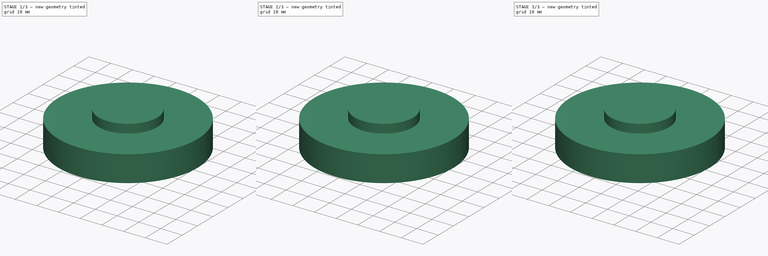
[diagram: build sequence overview — one tinted view per stage of 3, left to right]
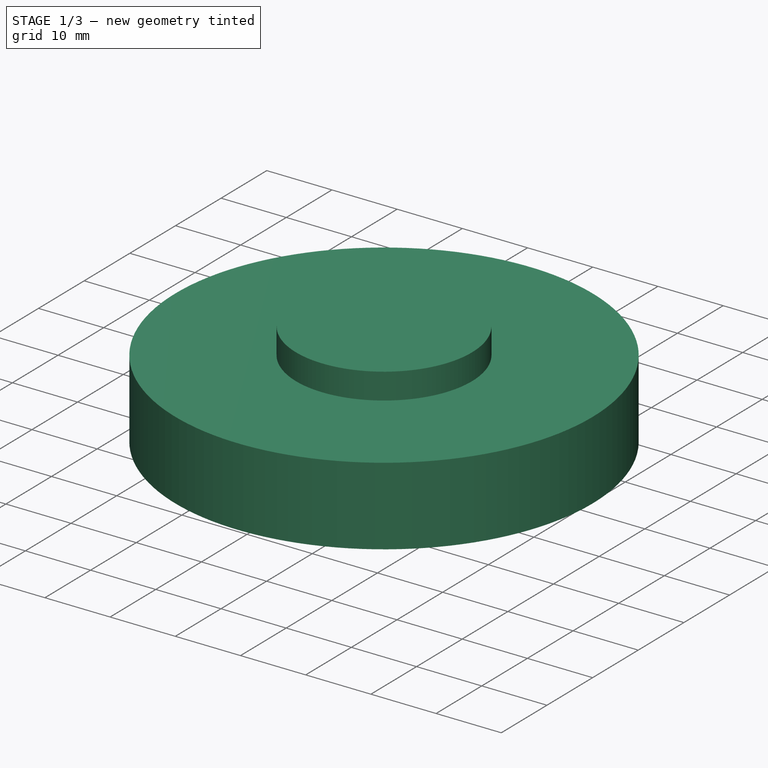
[diagram: stage 1 of 3 — iso view after this stage's code; geometry added in this stage tinted green]
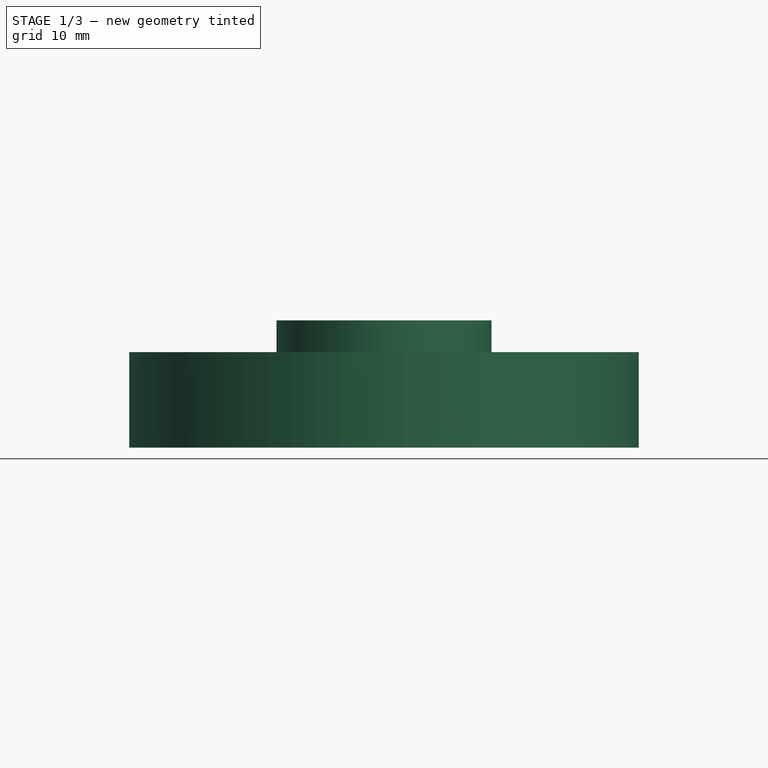
[diagram: stage 1 of 3 — front view after this stage's code; geometry added in this stage tinted green]
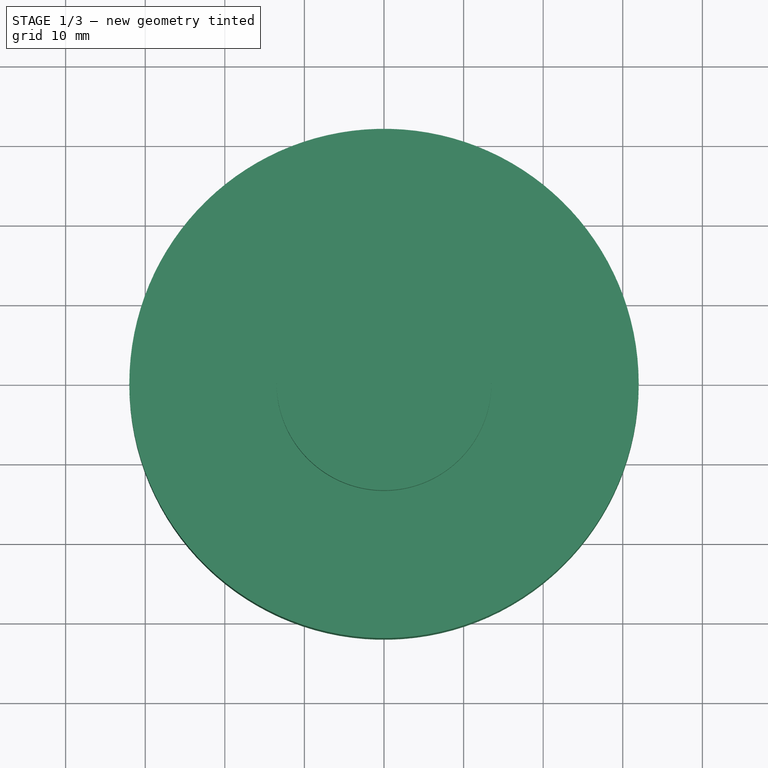
[diagram: stage 1 of 3 — top view after this stage's code; geometry added in this stage tinted green]
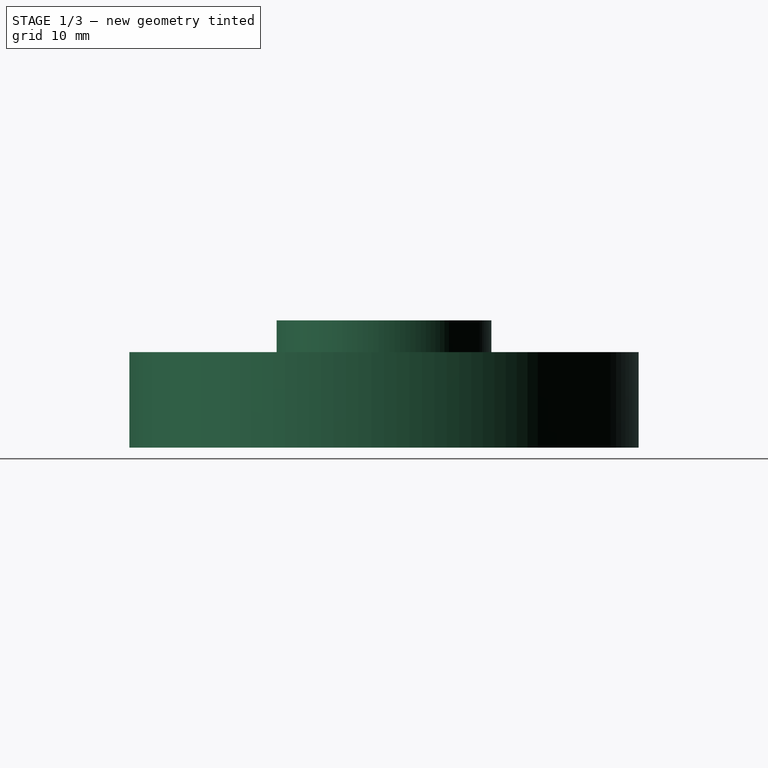
[diagram: stage 1 of 3 — right view after this stage's code; geometry added in this stage tinted green]
FCSTD DOCUMENT  (FreeCAD 1.2R20251230 (Git shallow))
Label: servo_wheel_360_partdesign
License: Creative Commons Attribution 4.0
LicenseURL: https://creativecommons.org/licenses/by/4.0/
objects: Sketcher::SketchObject×6, PartDesign::Pocket×4, PartDesign::Pad×2, App::Point×1, PartDesign::Body×1
note: 31 computed .brp shape members not serialized (recipe doc carries the construction recipe); baked Part::Feature solids carry a one-line shape summary decoded from their .brp

FEATURE [App::Point] Origin001
  Role = Origin
FEATURE [Sketcher::SketchObject] Sketch_01_Wheel_Profile
  ArcFitTolerance = 1e-06
  ExternalTypes = [0]
  FullyConstrained = true
  MakeInternals = false
  sketch-geometry (1):
    g0: Circle CenterX=0 CenterY=0 CenterZ=0 NormalX=0 NormalY=0 NormalZ=1 AngleXU=0 Radius=32
  constraints (2):
    c: Coincident(g0,g-1)
    c: Radius(g0) = 32
FEATURE [PartDesign::Pad] Pad_02_Wheel
  Direction = (0,0,1)
  Length = 12
  Length2 = 10
  Profile = -> Sketch_01_Wheel_Profile
  Refine = true
  SideType = 0
  Suppressed = false
  Type = 0
  Type2 = 0
FEATURE [Sketcher::SketchObject] Sketch_03_FrontHub_Profile
  ArcFitTolerance = 1e-06
  ExternalTypes = [0]
  FullyConstrained = true
  MakeInternals = false
  Placement = pos=(0,0,12) rot=(0,0,1;0rad)
  sketch-geometry (1):
    g0: Circle CenterX=0 CenterY=0 CenterZ=0 NormalX=0 NormalY=0 NormalZ=1 AngleXU=0 Radius=13.5
  constraints (2):
    c: Coincident(g0,g-1)
    c: Radius(g0) = 13.5
FEATURE [PartDesign::Pad] Pad_04_FrontHub
  BaseFeature = -> Pad_02_Wheel
  Direction = (0,0,1)
  Length = 4
  Length2 = 10
  Profile = -> Sketch_03_FrontHub_Profile
  Refine = true
  SideType = 0
  Suppressed = false
  Type = 0
  Type2 = 0
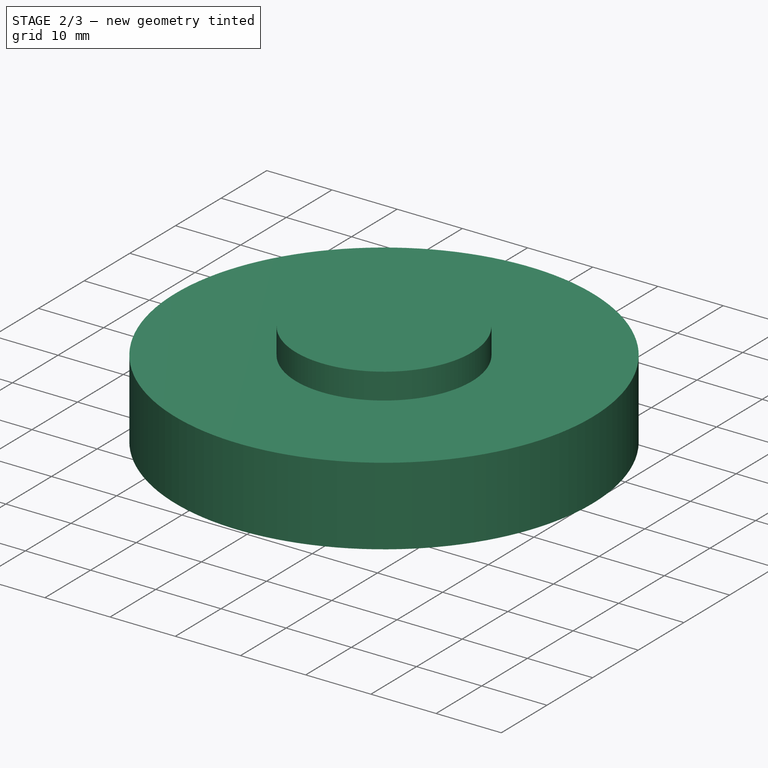
[diagram: stage 2 of 3 — iso view after this stage's code; geometry added in this stage tinted green]
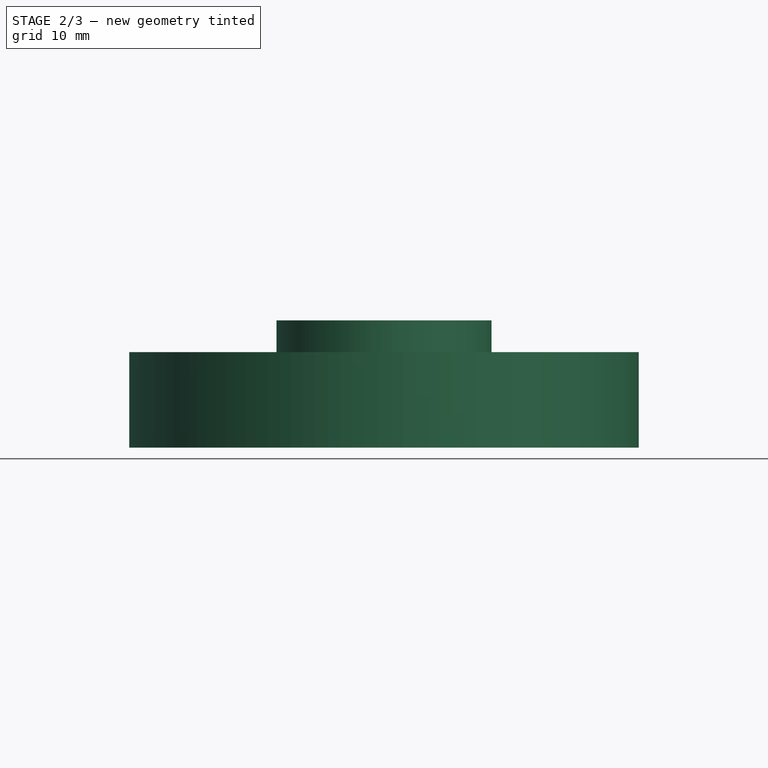
[diagram: stage 2 of 3 — front view after this stage's code; geometry added in this stage tinted green]
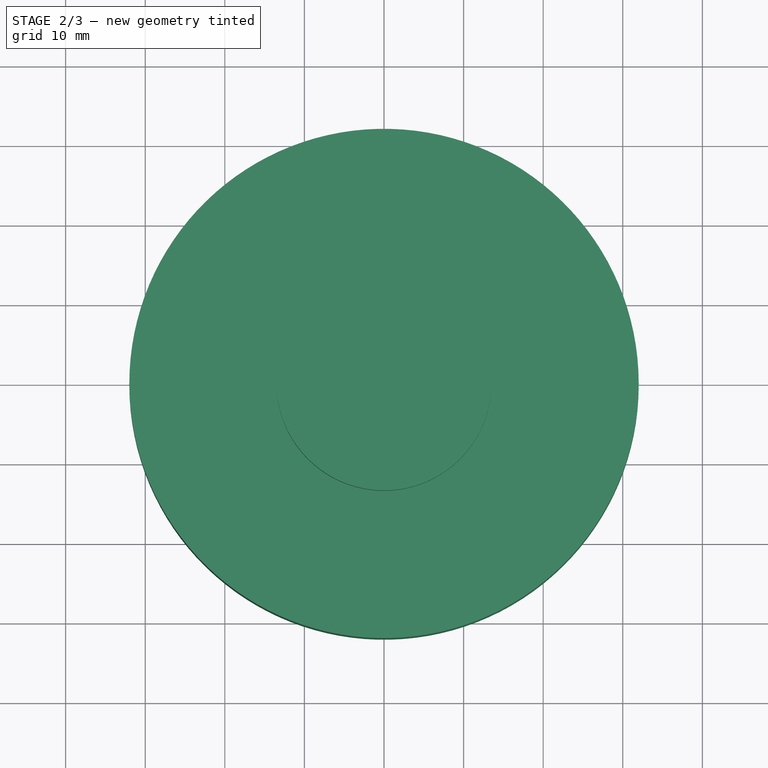
[diagram: stage 2 of 3 — top view after this stage's code; geometry added in this stage tinted green]
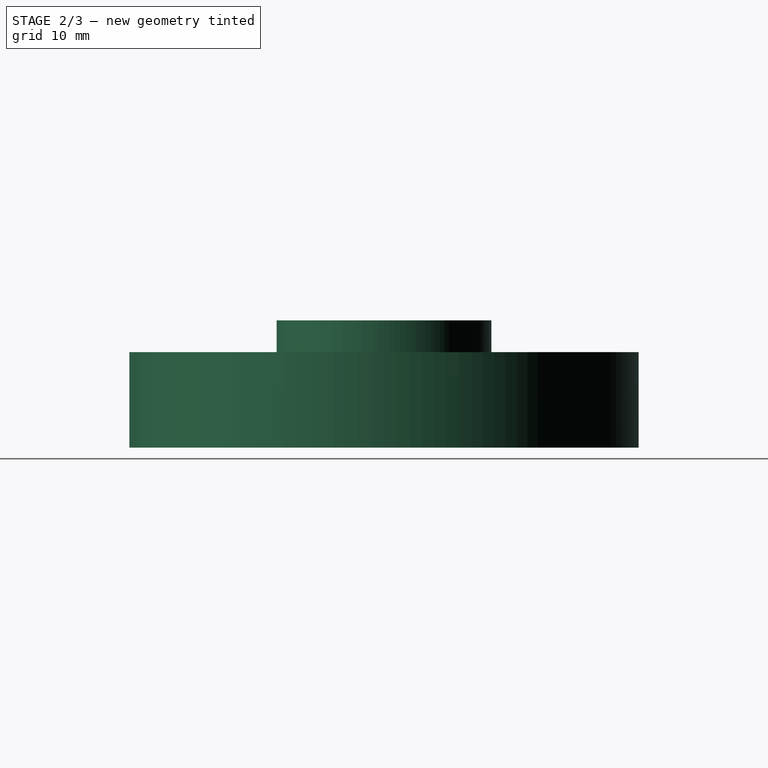
[diagram: stage 2 of 3 — right view after this stage's code; geometry added in this stage tinted green]
FEATURE [Sketcher::SketchObject] Sketch_05_Center_Screw_Hole
  ArcFitTolerance = 1e-06
  ExternalTypes = [0]
  FullyConstrained = true
  MakeInternals = false
  Placement = pos=(0,0,16) rot=(0,0,1;0rad)
  sketch-geometry (1):
    g0: Circle CenterX=0 CenterY=0 CenterZ=0 NormalX=0 NormalY=0 NormalZ=1 AngleXU=0 Radius=1.2
  constraints (2):
    c: Coincident(g0,g-1)
    c: Radius(g0) = 1.2
FEATURE [PartDesign::Pocket] Pocket_06_Center_Screw_Hole
  BaseFeature = -> Pad_04_FrontHub
  Direction = (0,0,-1)
  Length = 18
  Length2 = 5
  Profile = -> Sketch_05_Center_Screw_Hole
  Refine = true
  Reversed = true
  SideType = 0
  Suppressed = false
  Type = 0
  Type2 = 0
FEATURE [Sketcher::SketchObject] Sketch_07_ServoHorn_Pocket
  ArcFitTolerance = 1e-06
  ExternalTypes = [0]
  FullyConstrained = true
  MakeInternals = false
  Placement = pos=(0,0,16) rot=(0,0,1;0rad)
  sketch-geometry (1):
    g0: Circle CenterX=0 CenterY=0 CenterZ=0 NormalX=0 NormalY=0 NormalZ=1 AngleXU=0 Radius=10.4
  constraints (2):
    c: Coincident(g0,g-1)
    c: Radius(g0) = 10.4
FEATURE [PartDesign::Pocket] Pocket_08_ServoHorn_Pocket
  BaseFeature = -> Pocket_06_Center_Screw_Hole
  Direction = (0,0,-1)
  Length = 2.6
  Length2 = 5
  Profile = -> Sketch_07_ServoHorn_Pocket
  Refine = true
  Reversed = true
  SideType = 0
  Suppressed = false
  Type = 0
  Type2 = 0
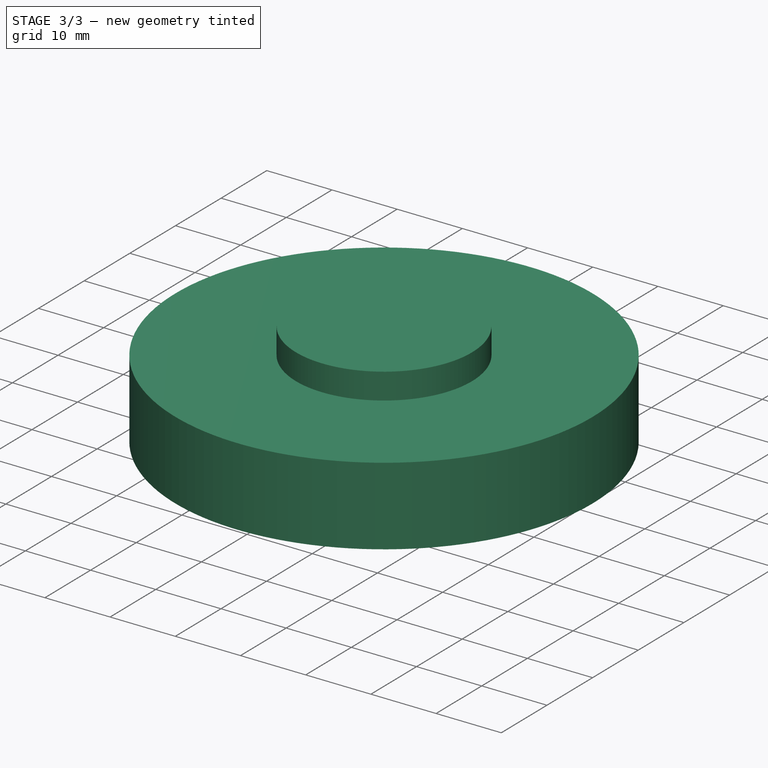
[diagram: stage 3 of 3 — iso view after this stage's code; geometry added in this stage tinted green]
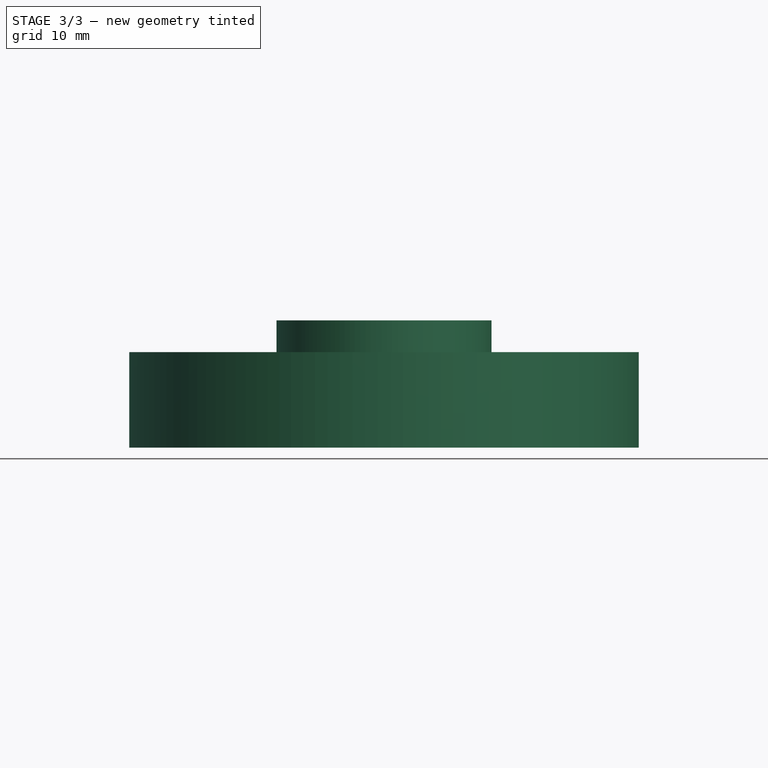
[diagram: stage 3 of 3 — front view after this stage's code; geometry added in this stage tinted green]
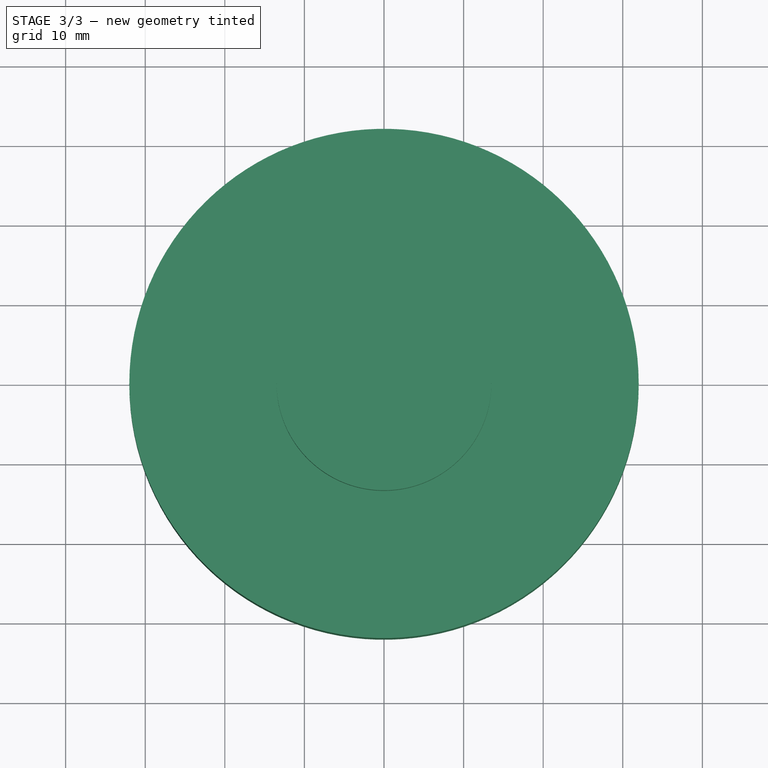
[diagram: stage 3 of 3 — top view after this stage's code; geometry added in this stage tinted green]
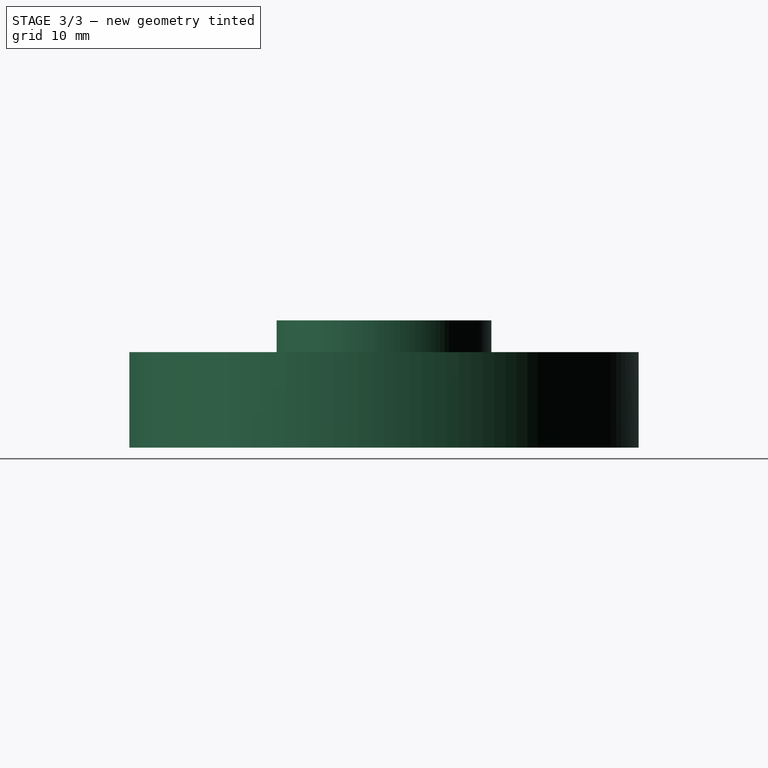
[diagram: stage 3 of 3 — right view after this stage's code; geometry added in this stage tinted green]
FEATURE [Sketcher::SketchObject] Sketch_09_Horn_Screw_Holes_4x
  ArcFitTolerance = 1e-06
  ExternalTypes = [0]
  FullyConstrained = false
  MakeInternals = false
  Placement = pos=(0,0,16) rot=(0,0,1;0rad)
  sketch-geometry (4):
    g0: Circle CenterX=7.5 CenterY=0 CenterZ=0 NormalX=0 NormalY=0 NormalZ=1 AngleXU=0 Radius=1.1
    g1: Circle CenterX=5e-16 CenterY=7.5 CenterZ=0 NormalX=0 NormalY=0 NormalZ=1 AngleXU=0 Radius=1.1
    g2: Circle CenterX=-7.5 CenterY=9e-16 CenterZ=0 NormalX=0 NormalY=0 NormalZ=1 AngleXU=0 Radius=1.1
    g3: Circle CenterX=-1.4e-15 CenterY=-7.5 CenterZ=0 NormalX=0 NormalY=0 NormalZ=1 AngleXU=0 Radius=1.1
  constraints (4):
    c: Radius(g0) = 1.1
    c: Radius(g1) = 1.1
    c: Radius(g2) = 1.1
    c: Radius(g3) = 1.1
FEATURE [PartDesign::Pocket] Pocket_10_Horn_Screw_Holes_4x
  BaseFeature = -> Pocket_08_ServoHorn_Pocket
  Direction = (0,0,-1)
  Length = 18
  Length2 = 5
  Profile = -> Sketch_09_Horn_Screw_Holes_4x
  Refine = true
  Reversed = true
  SideType = 0
  Suppressed = false
  Type = 0
  Type2 = 0
FEATURE [Sketcher::SketchObject] Sketch_11_Spoke_Cutouts_6x
  ArcFitTolerance = 1e-06
  ExternalTypes = [0]
  FullyConstrained = false
  MakeInternals = false
  Placement = pos=(0,0,16) rot=(0,0,1;0rad)
  sketch-geometry (6):
    g0: Circle CenterX=19.5 CenterY=0 CenterZ=0 NormalX=0 NormalY=0 NormalZ=1 AngleXU=0 Radius=4
    g1: Circle CenterX=9.75 CenterY=16.8875 CenterZ=0 NormalX=0 NormalY=0 NormalZ=1 AngleXU=0 Radius=4
    g2: Circle CenterX=-9.75 CenterY=16.8875 CenterZ=0 NormalX=0 NormalY=0 NormalZ=1 AngleXU=0 Radius=4
    g3: Circle CenterX=-19.5 CenterY=2.4e-15 CenterZ=0 NormalX=0 NormalY=0 NormalZ=1 AngleXU=0 Radius=4
    g4: Circle CenterX=-9.75 CenterY=-16.8875 CenterZ=0 NormalX=0 NormalY=0 NormalZ=1 AngleXU=0 Radius=4
    g5: Circle CenterX=9.75 CenterY=-16.8875 CenterZ=0 NormalX=0 NormalY=0 NormalZ=1 AngleXU=0 Radius=4
  constraints (6):
    c: Radius(g0) = 4
    c: Radius(g1) = 4
    c: Radius(g2) = 4
    c: Radius(g3) = 4
    c: Radius(g4) = 4
    c: Radius(g5) = 4
FEATURE [PartDesign::Pocket] Pocket_12_Spoke_Cutouts_6x
  BaseFeature = -> Pocket_10_Horn_Screw_Holes_4x
  Direction = (0,0,-1)
  Length = 18
  Length2 = 5
  Profile = -> Sketch_11_Spoke_Cutouts_6x
  Refine = true
  Reversed = true
  SideType = 0
  Suppressed = false
  Type = 0
  Type2 = 0
FEATURE [PartDesign::Body] Body_ServoWheel360
  AllowCompound = true
  Group = -> [Sketch_01_Wheel_Profile,Pad_02_Wheel,Sketch_03_FrontHub_Profile,Pad_04_FrontHub,Sketch_05_Center_Screw_Hole,Pocket_06_Center_Screw_Hole,Sketch_07_ServoHorn_Pocket,Pocket_08_ServoHorn_Pocket,Sketch_09_Horn_Screw_Holes_4x,Pocket_10_Horn_Screw_Holes_4x,Sketch_11_Spoke_Cutouts_6x,Pocket_12_Spoke_Cutouts_6x]
  Origin = -> Origin
  Tip = -> Pocket_12_Spoke_Cutouts_6x
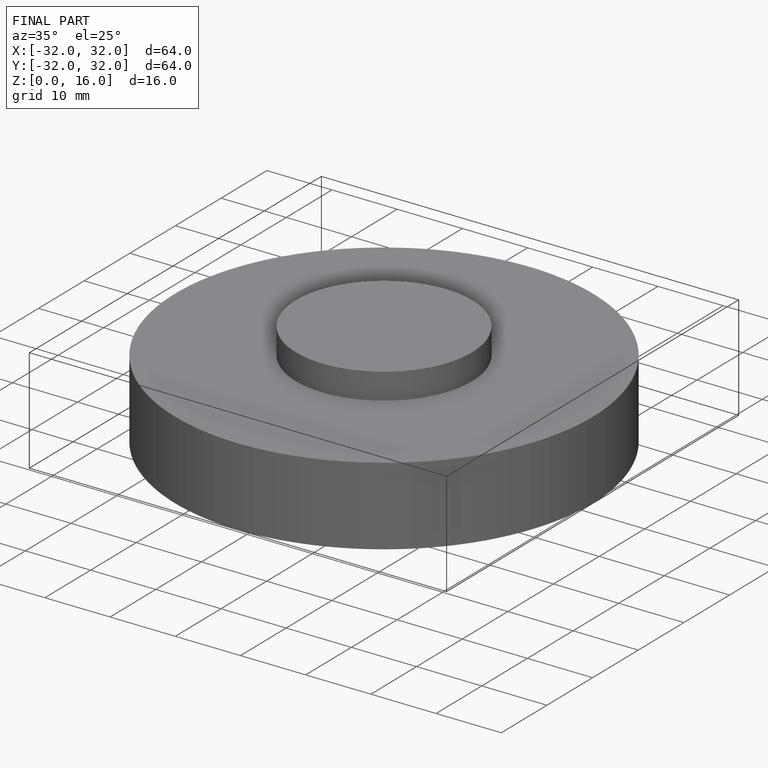
[diagram: finished part — iso view with bounding-box wireframe]
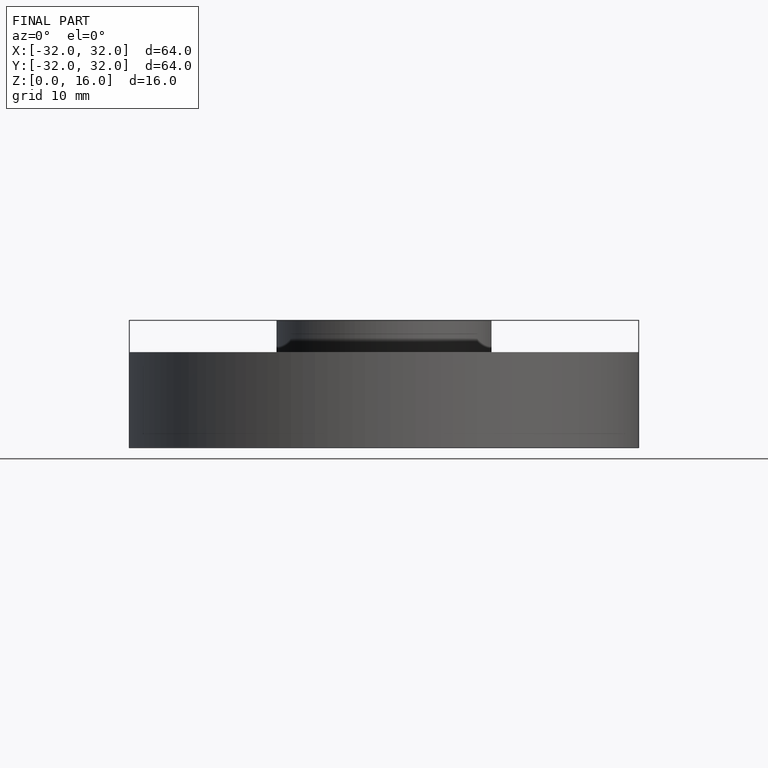
[diagram: finished part — front view with bounding-box wireframe]
